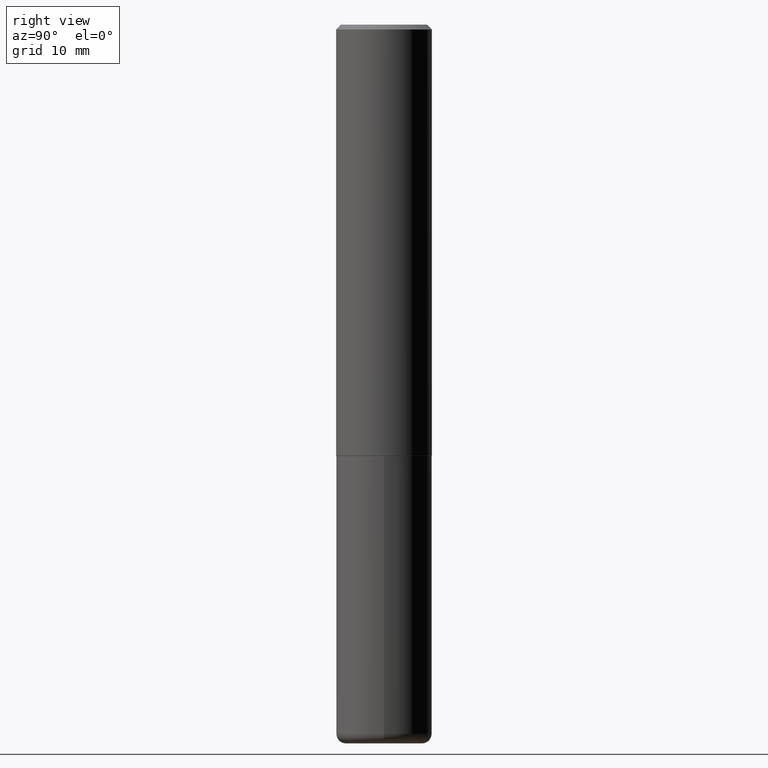
[diagram: clean part render]
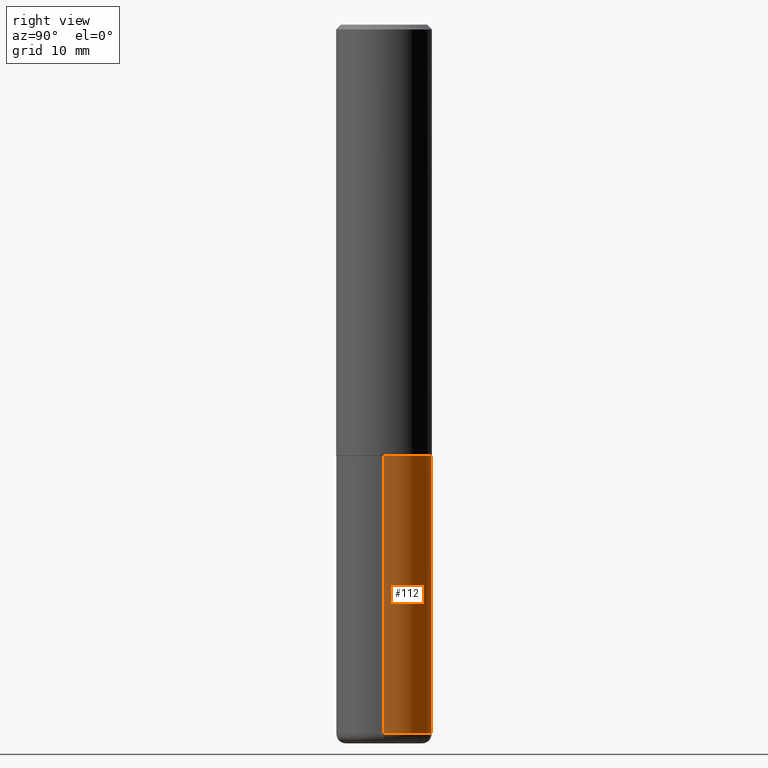
[diagram: same view with one face highlighted and labeled with its STEP entity id]
A machine part, right view. The second image highlights one B-rep face of the part: STEP entity #112.
In plain terms, the highlighted cylindrical surface (partial cylindrical patch) has radius 5 mm, axis along (-0, 0, 1).
Its self-contained STEP definition (entity closure, byte-faithful):
#5 = DIRECTION ( 'NONE',  ( -2.445468806185136877E-29, 3.491481338843145188E-15, 1.000000000000000000 ) ) ;
#12 = CARTESIAN_POINT ( 'NONE',  ( 0.1968500000000000805, -1.154667793568816250E-14, -2.913399999999999768 ) ) ;
#14 = AXIS2_PLACEMENT_3D ( 'NONE', #89, #355, #261 ) ;
#34 = CARTESIAN_POINT ( 'NONE',  ( -0.1968500000000000527, 1.398703375343757590E-15, -9.682923725166785079E-30 ) ) ;
#39 = CIRCLE ( 'NONE', #351, 0.1968500000000000527 ) ;
#56 = CARTESIAN_POINT ( 'NONE',  ( 0.000000000000000000, 0.000000000000000000, 0.000000000000000000 ) ) ;
#57 = EDGE_CURVE ( 'NONE', #362, #349, #39, .T. ) ;
#71 = VECTOR ( 'NONE', #273, 39.37007874015748143 ) ;
#80 = VERTEX_POINT ( 'NONE', #159 ) ;
#82 = EDGE_CURVE ( 'NONE', #180, #80, #317, .T. ) ;
#89 = CARTESIAN_POINT ( 'NONE',  ( 4.332637083918205306E-29, -6.185857488028398715E-15, -1.771699999999999608 ) ) ;
#93 = LINE ( 'NONE', #34, #341 ) ;
#112 = ADVANCED_FACE ( 'NONE', ( #220 ), #260, .T. ) ;
#133 = LINE ( 'NONE', #135, #71 ) ;
#135 = CARTESIAN_POINT ( 'NONE',  ( 0.1968500000000000527, -1.374596203102542003E-15, 9.598753983154302260E-30 ) ) ;
#147 = EDGE_CURVE ( 'NONE', #349, #80, #93, .T. ) ;
#159 = CARTESIAN_POINT ( 'NONE',  ( -0.1968500000000000250, -6.780266234963251621E-15, -1.771699999999999608 ) ) ;
#180 = VERTEX_POINT ( 'NONE', #393 ) ;
#191 = EDGE_CURVE ( 'NONE', #362, #180, #133, .T. ) ;
#220 = FACE_OUTER_BOUND ( 'NONE', #404, .T. ) ;
#225 = ORIENTED_EDGE ( 'NONE', *, *, #147, .T. ) ;
#244 = ORIENTED_EDGE ( 'NONE', *, *, #57, .T. ) ;
#253 = ORIENTED_EDGE ( 'NONE', *, *, #82, .F. ) ;
#260 = CYLINDRICAL_SURFACE ( 'NONE', #291, 0.1968500000000000527 ) ;
#261 = DIRECTION ( 'NONE',  ( 1.000000000000000000, -6.982962677686267499E-15, 0.000000000000000000 ) ) ;
#262 = DIRECTION ( 'NONE',  ( 1.000000000000000000, -6.982962677686266711E-15, 0.000000000000000000 ) ) ;
#273 = DIRECTION ( 'NONE',  ( -2.445468806185136877E-29, 3.491481338843145188E-15, 1.000000000000000000 ) ) ;
#290 = DIRECTION ( 'NONE',  ( -2.445468806185136597E-29, 3.491481338843145583E-15, 1.000000000000000000 ) ) ;
#291 = AXIS2_PLACEMENT_3D ( 'NONE', #56, #290, #377 ) ;
#317 = CIRCLE ( 'NONE', #14, 0.1968500000000000250 ) ;
#341 = VECTOR ( 'NONE', #5, 39.37007874015748143 ) ;
#346 = ORIENTED_EDGE ( 'NONE', *, *, #191, .F. ) ;
#349 = VERTEX_POINT ( 'NONE', #400 ) ;
#351 = AXIS2_PLACEMENT_3D ( 'NONE', #354, #381, #262 ) ;
#354 = CARTESIAN_POINT ( 'NONE',  ( 7.124628819939776708E-29, -1.017208173258561931E-14, -2.913399999999999768 ) ) ;
#355 = DIRECTION ( 'NONE',  ( -2.445468806185136597E-29, 3.491481338843145583E-15, 1.000000000000000000 ) ) ;
#362 = VERTEX_POINT ( 'NONE', #12 ) ;
#377 = DIRECTION ( 'NONE',  ( 1.000000000000000000, -6.982962677686266711E-15, 4.876176775795935793E-29 ) ) ;
#381 = DIRECTION ( 'NONE',  ( -2.445468806185136597E-29, 3.491481338843145583E-15, 1.000000000000000000 ) ) ;
#393 = CARTESIAN_POINT ( 'NONE',  ( 0.1968500000000000250, -7.560453691130941112E-15, -1.771699999999999608 ) ) ;
#400 = CARTESIAN_POINT ( 'NONE',  ( -0.1968500000000000805, -8.773378357241862315E-15, -2.913399999999999768 ) ) ;
#404 = EDGE_LOOP ( 'NONE', ( #244, #225, #253, #346 ) ) ;